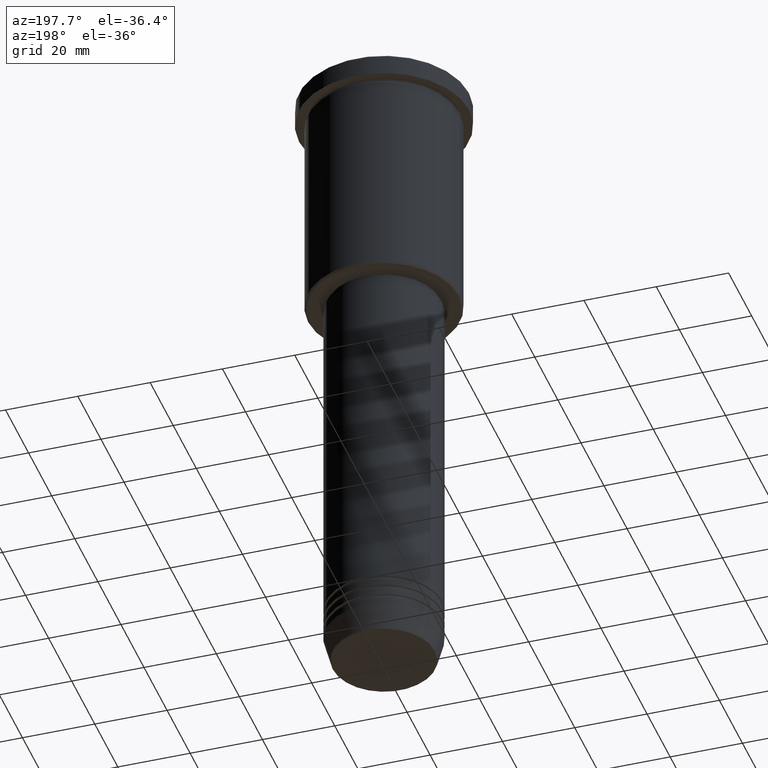
[diagram: clean part render]
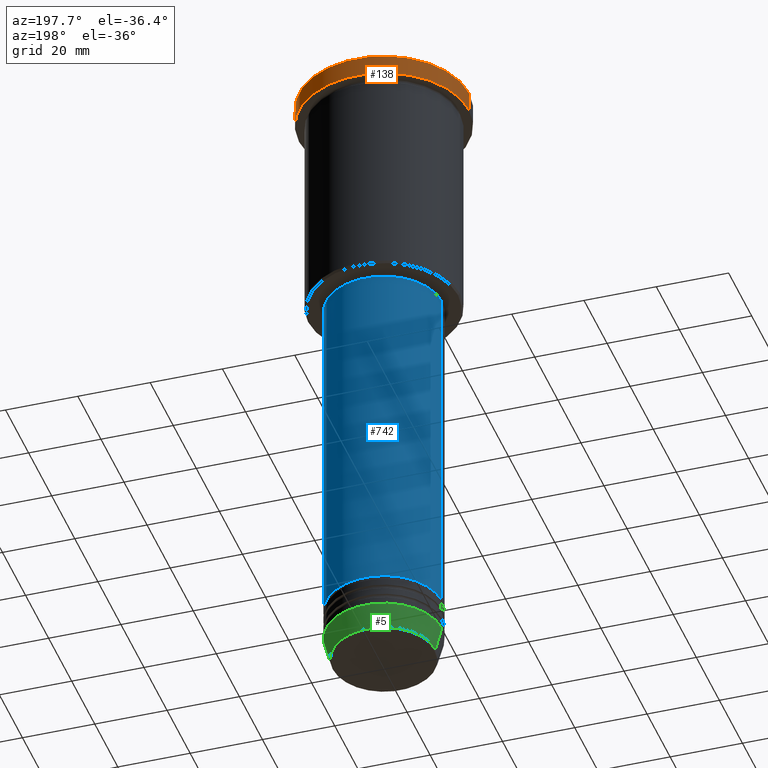
[diagram: same view with three faces highlighted in distinct colors, each labeled with its STEP entity id]
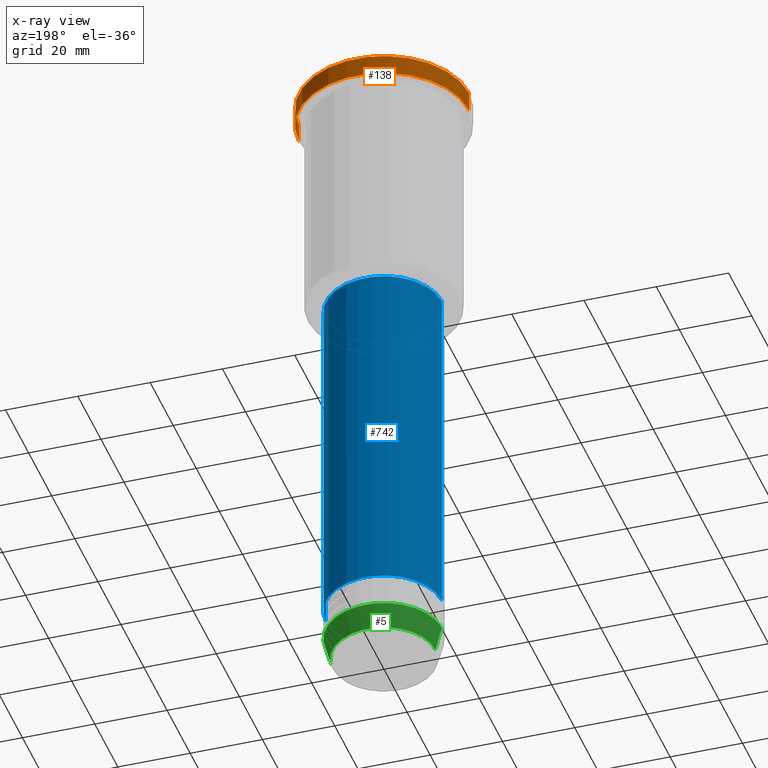
[diagram: x-ray of the same camera — body ghosted, the three highlighted faces saturated]
A machine part, auxiliary view with three faces highlighted in distinct colors.
The next image is the same camera in x-ray (body ghosted, the three faces saturated) — at least one of them is partly hidden behind the body in this view.
Their STEP definitions:

[orange] entity #138 — the highlighted cylindrical surface (partial cylindrical patch) has radius 23.5 mm, axis along (-0, -0, 1).
#58 = EDGE_CURVE ( 'NONE', #826, #503, #1037, .T. ) ;
#132 = CARTESIAN_POINT ( 'NONE',  ( 23.50000000000000000, 0.000000000000000000, -0.5000000000000004441 ) ) ;
#133 = CARTESIAN_POINT ( 'NONE',  ( -23.50000000000000000, 2.877919977996280320E-15, 0.000000000000000000 ) ) ;
#138 = ADVANCED_FACE ( 'NONE', ( #979 ), #897, .T. ) ;
#196 = CARTESIAN_POINT ( 'NONE',  ( 23.50000000000000000, 0.000000000000000000, 0.000000000000000000 ) ) ;
#205 = CARTESIAN_POINT ( 'NONE',  ( -23.50000000000000000, 2.877919977996280320E-15, -5.999999999999994671 ) ) ;
#215 = CARTESIAN_POINT ( 'NONE',  ( -23.50000000000000000, 2.877919977996280320E-15, -0.5000000000000004441 ) ) ;
#246 = DIRECTION ( 'NONE',  ( -0.000000000000000000, -0.000000000000000000, 1.000000000000000000 ) ) ;
#334 = CIRCLE ( 'NONE', #395, 23.50000000000000000 ) ;
#377 = DIRECTION ( 'NONE',  ( 1.000000000000000000, 0.000000000000000000, 0.000000000000000000 ) ) ;
#387 = CARTESIAN_POINT ( 'NONE',  ( 0.000000000000000000, 0.000000000000000000, -5.999999999999994671 ) ) ;
#395 = AXIS2_PLACEMENT_3D ( 'NONE', #492, #923, #850 ) ;
#414 = LINE ( 'NONE', #196, #1068 ) ;
#466 = EDGE_CURVE ( 'NONE', #712, #1047, #414, .T. ) ;
#471 = ORIENTED_EDGE ( 'NONE', *, *, #58, .T. ) ;
#492 = CARTESIAN_POINT ( 'NONE',  ( 0.000000000000000000, 0.000000000000000000, -0.5000000000000004441 ) ) ;
#500 = VECTOR ( 'NONE', #246, 1000.000000000000000 ) ;
#503 = VERTEX_POINT ( 'NONE', #215 ) ;
#516 = EDGE_CURVE ( 'NONE', #503, #1047, #334, .T. ) ;
#542 = CARTESIAN_POINT ( 'NONE',  ( 0.000000000000000000, 0.000000000000000000, 0.000000000000000000 ) ) ;
#562 = DIRECTION ( 'NONE',  ( -0.000000000000000000, -0.000000000000000000, 1.000000000000000000 ) ) ;
#570 = DIRECTION ( 'NONE',  ( -0.000000000000000000, -0.000000000000000000, 1.000000000000000000 ) ) ;
#682 = ORIENTED_EDGE ( 'NONE', *, *, #516, .T. ) ;
#689 = ORIENTED_EDGE ( 'NONE', *, *, #920, .T. ) ;
#712 = VERTEX_POINT ( 'NONE', #1041 ) ;
#769 = EDGE_LOOP ( 'NONE', ( #689, #471, #682, #1118 ) ) ;
#819 = DIRECTION ( 'NONE',  ( -0.000000000000000000, -0.000000000000000000, 1.000000000000000000 ) ) ;
#826 = VERTEX_POINT ( 'NONE', #205 ) ;
#850 = DIRECTION ( 'NONE',  ( 1.000000000000000000, 0.000000000000000000, 0.000000000000000000 ) ) ;
#897 = CYLINDRICAL_SURFACE ( 'NONE', #1083, 23.50000000000000000 ) ;
#920 = EDGE_CURVE ( 'NONE', #712, #826, #952, .T. ) ;
#923 = DIRECTION ( 'NONE',  ( 0.000000000000000000, 0.000000000000000000, -1.000000000000000000 ) ) ;
#952 = CIRCLE ( 'NONE', #1143, 23.50000000000000000 ) ;
#979 = FACE_OUTER_BOUND ( 'NONE', #769, .T. ) ;
#988 = DIRECTION ( 'NONE',  ( 1.000000000000000000, 0.000000000000000000, 0.000000000000000000 ) ) ;
#1037 = LINE ( 'NONE', #133, #500 ) ;
#1041 = CARTESIAN_POINT ( 'NONE',  ( 23.50000000000000000, 0.000000000000000000, -5.999999999999994671 ) ) ;
#1047 = VERTEX_POINT ( 'NONE', #132 ) ;
#1068 = VECTOR ( 'NONE', #562, 1000.000000000000000 ) ;
#1083 = AXIS2_PLACEMENT_3D ( 'NONE', #542, #819, #988 ) ;
#1118 = ORIENTED_EDGE ( 'NONE', *, *, #466, .F. ) ;
#1143 = AXIS2_PLACEMENT_3D ( 'NONE', #387, #570, #377 ) ;

[blue] entity #742 — the highlighted cylindrical surface (partial cylindrical patch) has radius 16 mm, axis along (-0, -0, 1).
#13 = CARTESIAN_POINT ( 'NONE',  ( 16.00000000000000000, 0.000000000000000000, -164.9999999999999716 ) ) ;
#90 = CARTESIAN_POINT ( 'NONE',  ( 0.000000000000000000, 0.000000000000000000, -164.9999999999999716 ) ) ;
#95 = EDGE_CURVE ( 'NONE', #727, #1033, #137, .T. ) ;
#115 = CIRCLE ( 'NONE', #785, 16.00000000000000000 ) ;
#137 = LINE ( 'NONE', #340, #1163 ) ;
#149 = CARTESIAN_POINT ( 'NONE',  ( 0.000000000000000000, 0.000000000000000000, 0.000000000000000000 ) ) ;
#247 = ORIENTED_EDGE ( 'NONE', *, *, #895, .F. ) ;
#275 = CIRCLE ( 'NONE', #692, 16.00000000000000000 ) ;
#288 = DIRECTION ( 'NONE',  ( -0.000000000000000000, -0.000000000000000000, 1.000000000000000000 ) ) ;
#299 = ORIENTED_EDGE ( 'NONE', *, *, #654, .T. ) ;
#327 = EDGE_LOOP ( 'NONE', ( #299, #1025, #885, #247 ) ) ;
#333 = CARTESIAN_POINT ( 'NONE',  ( -16.00000000000000000, 1.959434878635765131E-15, -67.00000000000000000 ) ) ;
#340 = CARTESIAN_POINT ( 'NONE',  ( -16.00000000000000000, 1.959434878635765131E-15, 0.000000000000000000 ) ) ;
#423 = DIRECTION ( 'NONE',  ( -0.000000000000000000, -0.000000000000000000, 1.000000000000000000 ) ) ;
#426 = VECTOR ( 'NONE', #711, 1000.000000000000000 ) ;
#480 = DIRECTION ( 'NONE',  ( -0.000000000000000000, -0.000000000000000000, 1.000000000000000000 ) ) ;
#525 = CARTESIAN_POINT ( 'NONE',  ( -16.00000000000000000, 1.959434878635765131E-15, -164.9999999999999716 ) ) ;
#564 = VERTEX_POINT ( 'NONE', #1065 ) ;
#626 = FACE_OUTER_BOUND ( 'NONE', #327, .T. ) ;
#654 = EDGE_CURVE ( 'NONE', #1095, #727, #115, .T. ) ;
#692 = AXIS2_PLACEMENT_3D ( 'NONE', #941, #480, #851 ) ;
#703 = DIRECTION ( 'NONE',  ( -0.000000000000000000, -0.000000000000000000, 1.000000000000000000 ) ) ;
#711 = DIRECTION ( 'NONE',  ( -0.000000000000000000, -0.000000000000000000, 1.000000000000000000 ) ) ;
#727 = VERTEX_POINT ( 'NONE', #525 ) ;
#742 = ADVANCED_FACE ( 'NONE', ( #626 ), #1069, .T. ) ;
#779 = EDGE_CURVE ( 'NONE', #564, #1033, #275, .T. ) ;
#785 = AXIS2_PLACEMENT_3D ( 'NONE', #90, #288, #816 ) ;
#816 = DIRECTION ( 'NONE',  ( 1.000000000000000000, 0.000000000000000000, 0.000000000000000000 ) ) ;
#851 = DIRECTION ( 'NONE',  ( 1.000000000000000000, 0.000000000000000000, 0.000000000000000000 ) ) ;
#885 = ORIENTED_EDGE ( 'NONE', *, *, #779, .F. ) ;
#895 = EDGE_CURVE ( 'NONE', #1095, #564, #949, .T. ) ;
#941 = CARTESIAN_POINT ( 'NONE',  ( 0.000000000000000000, 0.000000000000000000, -67.00000000000000000 ) ) ;
#949 = LINE ( 'NONE', #1131, #426 ) ;
#969 = AXIS2_PLACEMENT_3D ( 'NONE', #149, #423, #977 ) ;
#977 = DIRECTION ( 'NONE',  ( 1.000000000000000000, 0.000000000000000000, 0.000000000000000000 ) ) ;
#1025 = ORIENTED_EDGE ( 'NONE', *, *, #95, .T. ) ;
#1033 = VERTEX_POINT ( 'NONE', #333 ) ;
#1065 = CARTESIAN_POINT ( 'NONE',  ( 16.00000000000000000, 0.000000000000000000, -67.00000000000000000 ) ) ;
#1069 = CYLINDRICAL_SURFACE ( 'NONE', #969, 16.00000000000000000 ) ;
#1095 = VERTEX_POINT ( 'NONE', #13 ) ;
#1131 = CARTESIAN_POINT ( 'NONE',  ( 16.00000000000000000, 0.000000000000000000, 0.000000000000000000 ) ) ;
#1163 = VECTOR ( 'NONE', #703, 1000.000000000000000 ) ;

[green] entity #5 — the highlighted conical surface has half-angle 15 deg.
#5 = ADVANCED_FACE ( 'NONE', ( #348 ), #482, .T. ) ;
#39 = VERTEX_POINT ( 'NONE', #358 ) ;
#49 = DIRECTION ( 'NONE',  ( -0.2588190451025209615, 3.169619151431767406E-17, 0.9659258262890682012 ) ) ;
#60 = DIRECTION ( 'NONE',  ( 0.2588190451025209615, 0.000000000000000000, 0.9659258262890682012 ) ) ;
#101 = DIRECTION ( 'NONE',  ( -0.000000000000000000, -0.000000000000000000, 1.000000000000000000 ) ) ;
#142 = AXIS2_PLACEMENT_3D ( 'NONE', #916, #101, #468 ) ;
#143 = CARTESIAN_POINT ( 'NONE',  ( -16.00000000000000000, 1.959434878635765131E-15, -174.0000000000000284 ) ) ;
#145 = ORIENTED_EDGE ( 'NONE', *, *, #833, .F. ) ;
#181 = CARTESIAN_POINT ( 'NONE',  ( 16.00000000000000000, 0.000000000000000000, -174.0000000000000284 ) ) ;
#343 = DIRECTION ( 'NONE',  ( -0.000000000000000000, -0.000000000000000000, 1.000000000000000000 ) ) ;
#348 = FACE_OUTER_BOUND ( 'NONE', #381, .T. ) ;
#358 = CARTESIAN_POINT ( 'NONE',  ( -16.00000000000000000, 1.959434878635765131E-15, -174.0000000000000284 ) ) ;
#361 = CARTESIAN_POINT ( 'NONE',  ( 0.000000000000000000, 0.000000000000000000, -174.0000000000000284 ) ) ;
#381 = EDGE_LOOP ( 'NONE', ( #736, #958, #585, #145 ) ) ;
#454 = CARTESIAN_POINT ( 'NONE',  ( -14.22365507213720193, 1.850665122131324126E-15, -180.6294095225512422 ) ) ;
#468 = DIRECTION ( 'NONE',  ( 1.000000000000000000, 0.000000000000000000, 0.000000000000000000 ) ) ;
#474 = VECTOR ( 'NONE', #49, 1000.000000000000000 ) ;
#477 = CARTESIAN_POINT ( 'NONE',  ( 14.22365507213720193, 0.000000000000000000, -180.6294095225512422 ) ) ;
#479 = EDGE_CURVE ( 'NONE', #1132, #917, #860, .T. ) ;
#482 = CONICAL_SURFACE ( 'NONE', #641, 16.00000000000000000, 0.2617993877991496299 ) ;
#533 = DIRECTION ( 'NONE',  ( 1.000000000000000000, 0.000000000000000000, 0.000000000000000000 ) ) ;
#547 = CARTESIAN_POINT ( 'NONE',  ( 16.00000000000000000, 0.000000000000000000, -174.0000000000000284 ) ) ;
#561 = EDGE_CURVE ( 'NONE', #890, #39, #788, .T. ) ;
#585 = ORIENTED_EDGE ( 'NONE', *, *, #561, .F. ) ;
#618 = EDGE_CURVE ( 'NONE', #917, #39, #954, .T. ) ;
#641 = AXIS2_PLACEMENT_3D ( 'NONE', #361, #343, #533 ) ;
#736 = ORIENTED_EDGE ( 'NONE', *, *, #479, .T. ) ;
#786 = VECTOR ( 'NONE', #60, 1000.000000000000000 ) ;
#788 = CIRCLE ( 'NONE', #1085, 16.00000000000000000 ) ;
#833 = EDGE_CURVE ( 'NONE', #1132, #890, #866, .T. ) ;
#860 = CIRCLE ( 'NONE', #142, 14.22365507213720193 ) ;
#866 = LINE ( 'NONE', #181, #786 ) ;
#890 = VERTEX_POINT ( 'NONE', #547 ) ;
#916 = CARTESIAN_POINT ( 'NONE',  ( 0.000000000000000000, 0.000000000000000000, -180.6294095225512422 ) ) ;
#917 = VERTEX_POINT ( 'NONE', #454 ) ;
#954 = LINE ( 'NONE', #143, #474 ) ;
#958 = ORIENTED_EDGE ( 'NONE', *, *, #618, .T. ) ;
#964 = DIRECTION ( 'NONE',  ( -0.000000000000000000, -0.000000000000000000, 1.000000000000000000 ) ) ;
#1085 = AXIS2_PLACEMENT_3D ( 'NONE', #1138, #964, #1149 ) ;
#1132 = VERTEX_POINT ( 'NONE', #477 ) ;
#1138 = CARTESIAN_POINT ( 'NONE',  ( 0.000000000000000000, 0.000000000000000000, -174.0000000000000284 ) ) ;
#1149 = DIRECTION ( 'NONE',  ( 1.000000000000000000, 0.000000000000000000, 0.000000000000000000 ) ) ;